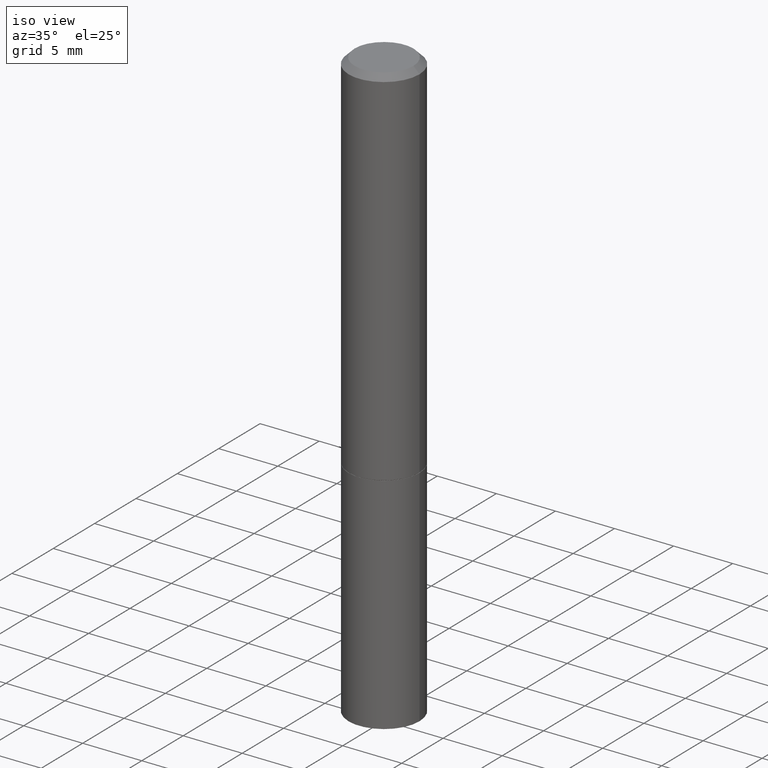
[diagram: clean part render]
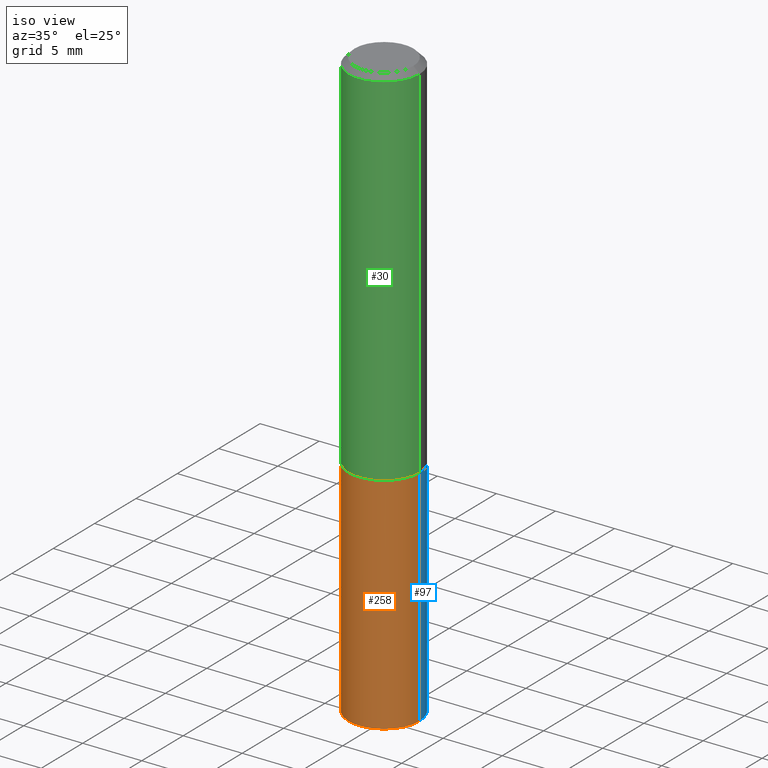
[diagram: same view with three faces highlighted in distinct colors, each labeled with its STEP entity id]
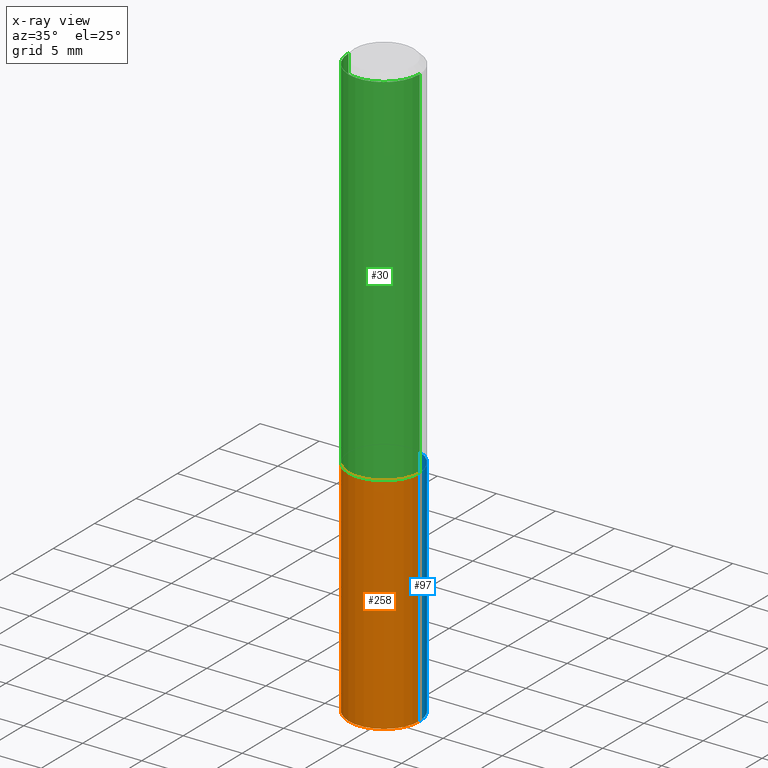
[diagram: x-ray of the same camera — body ghosted, the three highlighted faces saturated]
A machine part, iso view with three faces highlighted in distinct colors.
The next image is the same camera in x-ray (body ghosted, the three faces saturated) — at least one of them is partly hidden behind the body in this view.
Their STEP definitions:

[orange] entity #258 — the highlighted cylindrical surface (partial cylindrical patch) has radius 2.9997 mm, axis along (-0, 0, 1).
#1 = VERTEX_POINT ( 'NONE', #295 ) ;
#9 = DIRECTION ( 'NONE',  ( 1.000000000000000000, -6.982962677686265133E-15, 0.000000000000000000 ) ) ;
#19 = CARTESIAN_POINT ( 'NONE',  ( 0.000000000000000000, 0.000000000000000000, 0.000000000000000000 ) ) ;
#21 = EDGE_CURVE ( 'NONE', #1, #60, #156, .T. ) ;
#36 = ORIENTED_EDGE ( 'NONE', *, *, #247, .F. ) ;
#39 = AXIS2_PLACEMENT_3D ( 'NONE', #19, #196, #198 ) ;
#41 = DIRECTION ( 'NONE',  ( -2.445468806185136877E-29, 3.491481338843145188E-15, 1.000000000000000000 ) ) ;
#60 = VERTEX_POINT ( 'NONE', #76 ) ;
#76 = CARTESIAN_POINT ( 'NONE',  ( 0.1180999999999999966, -7.697668907747479970E-15, -1.968500000000000139 ) ) ;
#80 = EDGE_CURVE ( 'NONE', #60, #172, #179, .T. ) ;
#88 = AXIS2_PLACEMENT_3D ( 'NONE', #194, #329, #334 ) ;
#118 = ORIENTED_EDGE ( 'NONE', *, *, #21, .T. ) ;
#119 = VERTEX_POINT ( 'NONE', #207 ) ;
#120 = EDGE_LOOP ( 'NONE', ( #202, #118, #314, #36 ) ) ;
#139 = DIRECTION ( 'NONE',  ( -2.445468806185136877E-29, 3.491481338843145188E-15, 1.000000000000000000 ) ) ;
#141 = FACE_OUTER_BOUND ( 'NONE', #120, .T. ) ;
#153 = LINE ( 'NONE', #304, #283 ) ;
#156 = CIRCLE ( 'NONE', #339, 0.1180999999999999966 ) ;
#172 = VERTEX_POINT ( 'NONE', #272 ) ;
#179 = LINE ( 'NONE', #292, #335 ) ;
#194 = CARTESIAN_POINT ( 'NONE',  ( 2.984694677948959472E-29, -4.261352974058059028E-15, -1.220499999999999918 ) ) ;
#196 = DIRECTION ( 'NONE',  ( -2.445468806185136597E-29, 3.491481338843145583E-15, 1.000000000000000000 ) ) ;
#198 = DIRECTION ( 'NONE',  ( 1.000000000000000000, -6.982962677686266711E-15, 4.876176775795936353E-29 ) ) ;
#202 = ORIENTED_EDGE ( 'NONE', *, *, #225, .F. ) ;
#207 = CARTESIAN_POINT ( 'NONE',  ( -0.1180999999999999966, -4.728016023852716776E-15, -1.220499999999999918 ) ) ;
#225 = EDGE_CURVE ( 'NONE', #1, #119, #153, .T. ) ;
#247 = EDGE_CURVE ( 'NONE', #119, #172, #275, .T. ) ;
#253 = CYLINDRICAL_SURFACE ( 'NONE', #39, 0.1180999999999999966 ) ;
#258 = ADVANCED_FACE ( 'NONE', ( #141 ), #253, .T. ) ;
#272 = CARTESIAN_POINT ( 'NONE',  ( 0.1180999999999999966, -5.086040866292807290E-15, -1.220499999999999918 ) ) ;
#275 = CIRCLE ( 'NONE', #88, 0.1180999999999999966 ) ;
#283 = VECTOR ( 'NONE', #139, 39.37007874015748143 ) ;
#292 = CARTESIAN_POINT ( 'NONE',  ( 0.1180999999999999966, -8.246878922347480654E-16, 5.758764772215000440E-30 ) ) ;
#295 = CARTESIAN_POINT ( 'NONE',  ( -0.1180999999999999966, -4.728016023852716776E-15, -1.968500000000000139 ) ) ;
#304 = CARTESIAN_POINT ( 'NONE',  ( -0.1180999999999999966, 8.391509709326782957E-16, -5.809262341591043784E-30 ) ) ;
#314 = ORIENTED_EDGE ( 'NONE', *, *, #80, .T. ) ;
#319 = CARTESIAN_POINT ( 'NONE',  ( 4.813905344975441835E-29, -6.872981015512731707E-15, -1.968500000000000139 ) ) ;
#329 = DIRECTION ( 'NONE',  ( -2.445468806185136597E-29, 3.491481338843145583E-15, 1.000000000000000000 ) ) ;
#334 = DIRECTION ( 'NONE',  ( 1.000000000000000000, -6.982962677686265133E-15, 0.000000000000000000 ) ) ;
#335 = VECTOR ( 'NONE', #41, 39.37007874015748143 ) ;
#339 = AXIS2_PLACEMENT_3D ( 'NONE', #319, #347, #9 ) ;
#347 = DIRECTION ( 'NONE',  ( -2.445468806185136597E-29, 3.491481338843145583E-15, 1.000000000000000000 ) ) ;

[blue] entity #97 — the highlighted cylindrical surface (partial cylindrical patch) has radius 2.9997 mm, axis along (-0, 0, 1).
#1 = VERTEX_POINT ( 'NONE', #295 ) ;
#4 = EDGE_CURVE ( 'NONE', #172, #119, #230, .T. ) ;
#15 = DIRECTION ( 'NONE',  ( -2.445468806185136597E-29, 3.491481338843145583E-15, 1.000000000000000000 ) ) ;
#18 = DIRECTION ( 'NONE',  ( 1.000000000000000000, -6.982962677686266711E-15, 4.876176775795936353E-29 ) ) ;
#41 = DIRECTION ( 'NONE',  ( -2.445468806185136877E-29, 3.491481338843145188E-15, 1.000000000000000000 ) ) ;
#48 = EDGE_LOOP ( 'NONE', ( #147, #149, #231, #263 ) ) ;
#50 = DIRECTION ( 'NONE',  ( -2.445468806185136597E-29, 3.491481338843145583E-15, 1.000000000000000000 ) ) ;
#60 = VERTEX_POINT ( 'NONE', #76 ) ;
#66 = AXIS2_PLACEMENT_3D ( 'NONE', #189, #50, #18 ) ;
#70 = DIRECTION ( 'NONE',  ( 1.000000000000000000, -6.982962677686265133E-15, 0.000000000000000000 ) ) ;
#76 = CARTESIAN_POINT ( 'NONE',  ( 0.1180999999999999966, -7.697668907747479970E-15, -1.968500000000000139 ) ) ;
#80 = EDGE_CURVE ( 'NONE', #60, #172, #179, .T. ) ;
#97 = ADVANCED_FACE ( 'NONE', ( #181 ), #293, .T. ) ;
#101 = DIRECTION ( 'NONE',  ( 1.000000000000000000, -6.982962677686265133E-15, 0.000000000000000000 ) ) ;
#119 = VERTEX_POINT ( 'NONE', #207 ) ;
#139 = DIRECTION ( 'NONE',  ( -2.445468806185136877E-29, 3.491481338843145188E-15, 1.000000000000000000 ) ) ;
#145 = EDGE_CURVE ( 'NONE', #60, #1, #343, .T. ) ;
#147 = ORIENTED_EDGE ( 'NONE', *, *, #145, .T. ) ;
#149 = ORIENTED_EDGE ( 'NONE', *, *, #225, .T. ) ;
#153 = LINE ( 'NONE', #304, #283 ) ;
#163 = CARTESIAN_POINT ( 'NONE',  ( 2.984694677948959472E-29, -4.261352974058059028E-15, -1.220499999999999918 ) ) ;
#172 = VERTEX_POINT ( 'NONE', #272 ) ;
#178 = DIRECTION ( 'NONE',  ( -2.445468806185136597E-29, 3.491481338843145583E-15, 1.000000000000000000 ) ) ;
#179 = LINE ( 'NONE', #292, #335 ) ;
#181 = FACE_OUTER_BOUND ( 'NONE', #48, .T. ) ;
#189 = CARTESIAN_POINT ( 'NONE',  ( 0.000000000000000000, 0.000000000000000000, 0.000000000000000000 ) ) ;
#207 = CARTESIAN_POINT ( 'NONE',  ( -0.1180999999999999966, -4.728016023852716776E-15, -1.220499999999999918 ) ) ;
#225 = EDGE_CURVE ( 'NONE', #1, #119, #153, .T. ) ;
#230 = CIRCLE ( 'NONE', #242, 0.1180999999999999966 ) ;
#231 = ORIENTED_EDGE ( 'NONE', *, *, #4, .F. ) ;
#242 = AXIS2_PLACEMENT_3D ( 'NONE', #163, #15, #70 ) ;
#263 = ORIENTED_EDGE ( 'NONE', *, *, #80, .F. ) ;
#272 = CARTESIAN_POINT ( 'NONE',  ( 0.1180999999999999966, -5.086040866292807290E-15, -1.220499999999999918 ) ) ;
#273 = AXIS2_PLACEMENT_3D ( 'NONE', #348, #178, #101 ) ;
#283 = VECTOR ( 'NONE', #139, 39.37007874015748143 ) ;
#292 = CARTESIAN_POINT ( 'NONE',  ( 0.1180999999999999966, -8.246878922347480654E-16, 5.758764772215000440E-30 ) ) ;
#293 = CYLINDRICAL_SURFACE ( 'NONE', #66, 0.1180999999999999966 ) ;
#295 = CARTESIAN_POINT ( 'NONE',  ( -0.1180999999999999966, -4.728016023852716776E-15, -1.968500000000000139 ) ) ;
#304 = CARTESIAN_POINT ( 'NONE',  ( -0.1180999999999999966, 8.391509709326782957E-16, -5.809262341591043784E-30 ) ) ;
#335 = VECTOR ( 'NONE', #41, 39.37007874015748143 ) ;
#343 = CIRCLE ( 'NONE', #273, 0.1180999999999999966 ) ;
#348 = CARTESIAN_POINT ( 'NONE',  ( 4.813905344975441835E-29, -6.872981015512731707E-15, -1.968500000000000139 ) ) ;

[green] entity #30 — the highlighted cylindrical surface (partial cylindrical patch) has radius 2.9997 mm, axis along (-0, 0, 1).
#5 = FACE_OUTER_BOUND ( 'NONE', #227, .T. ) ;
#30 = ADVANCED_FACE ( 'NONE', ( #5 ), #320, .T. ) ;
#33 = VERTEX_POINT ( 'NONE', #44 ) ;
#43 = AXIS2_PLACEMENT_3D ( 'NONE', #269, #75, #162 ) ;
#44 = CARTESIAN_POINT ( 'NONE',  ( 0.1180999999999998301, -8.800544403136797528E-16, -0.02000000000000003511 ) ) ;
#62 = EDGE_CURVE ( 'NONE', #90, #175, #213, .T. ) ;
#65 = ORIENTED_EDGE ( 'NONE', *, *, #62, .F. ) ;
#75 = DIRECTION ( 'NONE',  ( -2.445468806185136597E-29, 3.491481338843145583E-15, 1.000000000000000000 ) ) ;
#90 = VERTEX_POINT ( 'NONE', #346 ) ;
#91 = ORIENTED_EDGE ( 'NONE', *, *, #164, .F. ) ;
#102 = DIRECTION ( 'NONE',  ( -2.445468806185136597E-29, 3.491481338843145583E-15, 1.000000000000000000 ) ) ;
#104 = AXIS2_PLACEMENT_3D ( 'NONE', #246, #353, #328 ) ;
#105 = DIRECTION ( 'NONE',  ( 1.000000000000000000, -6.982962677686266711E-15, 4.876176775795935793E-29 ) ) ;
#108 = CARTESIAN_POINT ( 'NONE',  ( -0.1180999999999999134, 8.391509709326777040E-16, -5.809262341591039580E-30 ) ) ;
#116 = CIRCLE ( 'NONE', #43, 0.1180999999999998301 ) ;
#121 = VECTOR ( 'NONE', #186, 39.37007874015748143 ) ;
#130 = EDGE_CURVE ( 'NONE', #313, #33, #245, .T. ) ;
#162 = DIRECTION ( 'NONE',  ( 1.000000000000000000, -6.982962677686266711E-15, 0.000000000000000000 ) ) ;
#164 = EDGE_CURVE ( 'NONE', #175, #33, #116, .T. ) ;
#174 = ORIENTED_EDGE ( 'NONE', *, *, #356, .T. ) ;
#175 = VERTEX_POINT ( 'NONE', #291 ) ;
#177 = ORIENTED_EDGE ( 'NONE', *, *, #130, .T. ) ;
#186 = DIRECTION ( 'NONE',  ( -2.445468806185136877E-29, 3.491481338843145188E-15, 1.000000000000000000 ) ) ;
#203 = AXIS2_PLACEMENT_3D ( 'NONE', #241, #102, #105 ) ;
#213 = LINE ( 'NONE', #108, #121 ) ;
#227 = EDGE_LOOP ( 'NONE', ( #65, #174, #177, #91 ) ) ;
#237 = CARTESIAN_POINT ( 'NONE',  ( 0.1180999999999999134, -8.246878922347474737E-16, 5.758764772214996237E-30 ) ) ;
#241 = CARTESIAN_POINT ( 'NONE',  ( 0.000000000000000000, 0.000000000000000000, 0.000000000000000000 ) ) ;
#245 = LINE ( 'NONE', #237, #303 ) ;
#246 = CARTESIAN_POINT ( 'NONE',  ( 2.982249209142773869E-29, -4.257861492719216809E-15, -1.219500000000000028 ) ) ;
#256 = CIRCLE ( 'NONE', #104, 0.1180999999999999966 ) ;
#269 = CARTESIAN_POINT ( 'NONE',  ( 4.890937612370281041E-31, -6.982962677686302702E-17, -0.02000000000000003511 ) ) ;
#276 = CARTESIAN_POINT ( 'NONE',  ( 0.1180999999999999966, -5.082549384953964283E-15, -1.219500000000000028 ) ) ;
#291 = CARTESIAN_POINT ( 'NONE',  ( -0.1180999999999998301, 7.548582654578837811E-16, -0.02000000000000003511 ) ) ;
#300 = DIRECTION ( 'NONE',  ( -2.445468806185136877E-29, 3.491481338843145188E-15, 1.000000000000000000 ) ) ;
#303 = VECTOR ( 'NONE', #300, 39.37007874015748143 ) ;
#313 = VERTEX_POINT ( 'NONE', #276 ) ;
#320 = CYLINDRICAL_SURFACE ( 'NONE', #203, 0.1180999999999999134 ) ;
#328 = DIRECTION ( 'NONE',  ( 1.000000000000000000, -6.982962677686265133E-15, 0.000000000000000000 ) ) ;
#346 = CARTESIAN_POINT ( 'NONE',  ( -0.1180999999999999966, -1.324694588815359885E-15, -1.219500000000000028 ) ) ;
#353 = DIRECTION ( 'NONE',  ( -2.445468806185136597E-29, 3.491481338843145583E-15, 1.000000000000000000 ) ) ;
#356 = EDGE_CURVE ( 'NONE', #90, #313, #256, .T. ) ;